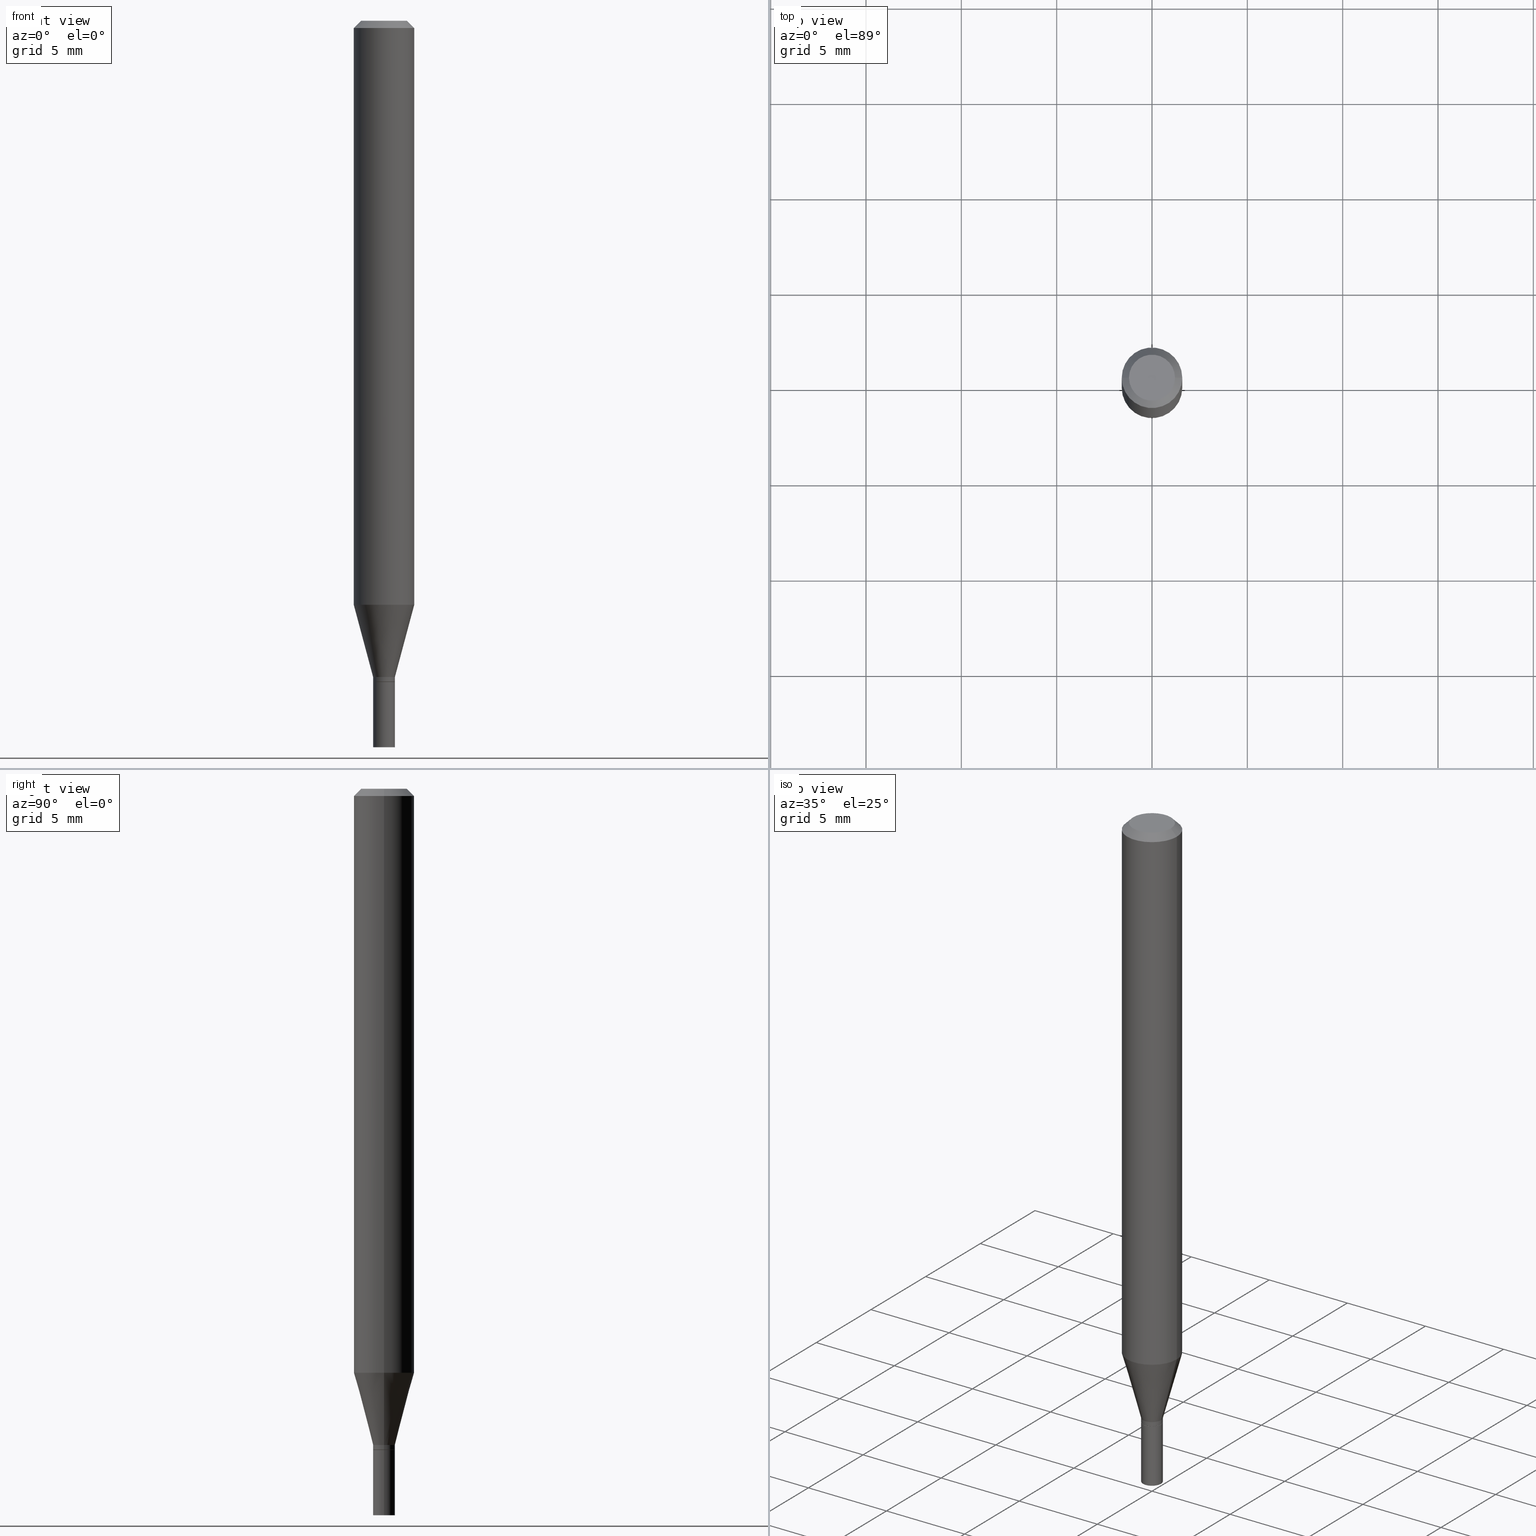
[diagram: canonical four-view strip — front | top / right | iso, engineering-drawing reading convention]
A machine part, canonical four-view strip (front | top / right | iso — engineering-drawing reading convention). The complete STEP part file that produces these views, byte-faithful:
ISO-10303-21;
HEADER;
FILE_DESCRIPTION (( 'STEP AP203' ),
    '1' );
FILE_NAME ('02440.STEP',
    '2024-03-18T20:36:44',
    ( '' ),
    ( '' ),
    'SwSTEP 2.0',
    'SolidWorks 2023',
    '' );
FILE_SCHEMA (( 'CONFIG_CONTROL_DESIGN' ));
ENDSEC;

DATA;
#1 = DIRECTION ( 'NONE',  ( -2.445468806185136597E-29, 3.491481338843145583E-15, 1.000000000000000000 ) ) ;
#2 = ORIENTED_EDGE ( 'NONE', *, *, #320, .T. ) ;
#3 = DATE_AND_TIME ( #216, #402 ) ;
#4 = CARTESIAN_POINT ( 'NONE',  ( 3.313610232380860851E-29, -4.730957214132463209E-15, -1.355000000000000204 ) ) ;
#5 = EDGE_LOOP ( 'NONE', ( #10, #349, #232, #228 ) ) ;
#6 = AXIS2_PLACEMENT_3D ( 'NONE', #9, #79, #304 ) ;
#7 = DIRECTION ( 'NONE',  ( -2.445468806185136597E-29, 3.491481338843145583E-15, 1.000000000000000000 ) ) ;
#8 = ORIENTED_EDGE ( 'NONE', *, *, #204, .T. ) ;
#9 = CARTESIAN_POINT ( 'NONE',  ( 0.000000000000000000, 0.000000000000000000, 0.000000000000000000 ) ) ;
#10 = ORIENTED_EDGE ( 'NONE', *, *, #390, .F. ) ;
#11 = PRODUCT ( '02440', '02440', '', ( #423 ) ) ;
#12 = CARTESIAN_POINT ( 'NONE',  ( 1.571166602479743698E-16, 0.02249999999999523215, -1.364999999999999991 ) ) ;
#13 = ORIENTED_EDGE ( 'NONE', *, *, #282, .T. ) ;
#14 = CIRCLE ( 'NONE', #392, 0.02199999999999999872 ) ;
#15 = CIRCLE ( 'NONE', #281, 0.02249999999999992284 ) ;
#16 = DIRECTION ( 'NONE',  ( -2.445468806185136877E-29, 3.491481338843145188E-15, 1.000000000000000000 ) ) ;
#17 = DIRECTION ( 'NONE',  ( 1.000000000000000000, -6.982962677686267499E-15, 4.852736867747366768E-29 ) ) ;
#18 = DIRECTION ( 'NONE',  ( 1.000000000000000000, -6.982962677686266711E-15, 4.876176775795935793E-29 ) ) ;
#19 = EDGE_LOOP ( 'NONE', ( #40, #239, #194, #262 ) ) ;
#20 = DIRECTION ( 'NONE',  ( 1.000000000000000000, -6.982962677686266711E-15, 0.000000000000000000 ) ) ;
#21 = DIRECTION ( 'NONE',  ( 1.000000000000000000, -6.982962677686269077E-15, 0.000000000000000000 ) ) ;
#22 = CIRCLE ( 'NONE', #440, 0.04749999999999999362 ) ;
#23 = LOCAL_TIME ( 16, 36, 44.00000000000000000, #94 ) ;
#24 = EDGE_LOOP ( 'NONE', ( #439, #13, #325, #290 ) ) ;
#25 = COORDINATED_UNIVERSAL_TIME_OFFSET ( 5, 0, .BEHIND. ) ;
#26 = ORIENTED_EDGE ( 'NONE', *, *, #238, .F. ) ;
#27 = EDGE_CURVE ( 'NONE', #167, #97, #22, .T. ) ;
#28 = CALENDAR_DATE ( 2024, 18, 3 ) ;
#29 = LINE ( 'NONE', #139, #219 ) ;
#30 = EDGE_CURVE ( 'NONE', #370, #259, #122, .T. ) ;
#31 = DIRECTION ( 'NONE',  ( 1.000000000000000000, 0.000000000000000000, 0.000000000000000000 ) ) ;
#32 = PERSON_AND_ORGANIZATION_ROLE ( 'creator' ) ;
#33 = DIRECTION ( 'NONE',  ( 1.000000000000000000, -6.982962677686248567E-15, 0.000000000000000000 ) ) ;
#34 = AXIS2_PLACEMENT_3D ( 'NONE', #4, #429, #397 ) ;
#35 = DATE_TIME_ROLE ( 'classification_date' ) ;
#36 = FACE_OUTER_BOUND ( 'NONE', #302, .T. ) ;
#37 = EDGE_CURVE ( 'NONE', #74, #257, #450, .T. ) ;
#38 = CARTESIAN_POINT ( 'NONE',  ( 0.000000000000000000, 0.000000000000000000, 0.000000000000000000 ) ) ;
#39 = EDGE_CURVE ( 'NONE', #203, #323, #137, .T. ) ;
#40 = ORIENTED_EDGE ( 'NONE', *, *, #30, .T. ) ;
#41 = PERSON_AND_ORGANIZATION ( #69, #50 ) ;
#42 = DIRECTION ( 'NONE',  ( 1.000000000000000000, -6.982962677686265922E-15, 4.876176775795935793E-29 ) ) ;
#43 = PRODUCT_DEFINITION_FORMATION_WITH_SPECIFIED_SOURCE ( 'ANY', '', #11, .NOT_KNOWN. ) ;
#44 = CARTESIAN_POINT ( 'NONE',  ( -0.02249999999999999917, -4.841674902346784228E-15, -1.500000000000000222 ) ) ;
#45 = DIRECTION ( 'NONE',  ( -2.445468806185136597E-29, 3.491481338843145583E-15, 1.000000000000000000 ) ) ;
#46 = UNCERTAINTY_MEASURE_WITH_UNIT (LENGTH_MEASURE( 1.000000000000000082E-05 ), #240, 'distance_accuracy_value', 'NONE');
#47 = ORIENTED_EDGE ( 'NONE', *, *, #133, .T. ) ;
#48 = LINE ( 'NONE', #443, #138 ) ;
#49 = EDGE_LOOP ( 'NONE', ( #398, #115, #420, #444 ) ) ;
#50 = ORGANIZATION ( 'UNSPECIFIED', 'UNSPECIFIED', '' ) ;
#51 = DIRECTION ( 'NONE',  ( 2.438088387897960049E-29, -3.491481338843145188E-15, -1.000000000000000000 ) ) ;
#52 = DIRECTION ( 'NONE',  ( -2.445468806185136597E-29, 3.491481338843145583E-15, 1.000000000000000000 ) ) ;
#53 = DIRECTION ( 'NONE',  ( 0.7071067811865420216, -7.319954787623237113E-15, -0.7071067811865530128 ) ) ;
#54 = PLANE ( 'NONE',  #336 ) ;
#55 = DIRECTION ( 'NONE',  ( -2.445468806185136597E-29, 3.491481338843145583E-15, 1.000000000000000000 ) ) ;
#56 = FACE_OUTER_BOUND ( 'NONE', #305, .T. ) ;
#57 = MANIFOLD_SOLID_BREP ( 'Body-Move/Copy2[1]', #106 ) ;
#58 = AXIS2_PLACEMENT_3D ( 'NONE', #369, #224, #309 ) ;
#59 = EDGE_LOOP ( 'NONE', ( #455, #47, #2, #121 ) ) ;
#60 = PERSON_AND_ORGANIZATION ( #69, #50 ) ;
#61 = DIRECTION ( 'NONE',  ( 2.445468806185136597E-29, -3.491481338843145583E-15, -1.000000000000000000 ) ) ;
#62 = EDGE_CURVE ( 'NONE', #323, #203, #248, .T. ) ;
#63 = PLANE ( 'NONE',  #421 ) ;
#64 = DIRECTION ( 'NONE',  ( -1.000000000000000000, 6.982962677686266711E-15, 0.000000000000000000 ) ) ;
#65 = CALENDAR_DATE ( 2024, 18, 3 ) ;
#66 = AXIS2_PLACEMENT_3D ( 'NONE', #38, #182, #42 ) ;
#67 = CC_DESIGN_SECURITY_CLASSIFICATION ( #347, ( #43 ) ) ;
#68 = APPROVAL_STATUS ( 'not_yet_approved' ) ;
#69 = PERSON ( 'UNSPECIFIED', 'UNSPECIFIED', 'UNSPECIFIED', ('UNSPECIFIED'), ('UNSPECIFIED'), ('UNSPECIFIED') ) ;
#70 = DIRECTION ( 'NONE',  ( -0.7071067811865420216, 2.468850131082199474E-15, -0.7071067811865530128 ) ) ;
#71 = VECTOR ( 'NONE', #445, 39.37007874015748143 ) ;
#72 = FACE_OUTER_BOUND ( 'NONE', #113, .T. ) ;
#73 = DESIGN_CONTEXT ( 'detailed design', #303, 'design' ) ;
#74 = VERTEX_POINT ( 'NONE', #236 ) ;
#75 = ADVANCED_FACE ( 'NONE', ( #457 ), #313, .T. ) ;
#76 = APPROVAL_ROLE ( '' ) ;
#77 = DIRECTION ( 'NONE',  ( 1.000000000000000000, -6.982962677686267499E-15, 4.852736867747366768E-29 ) ) ;
#78 = ORIENTED_EDGE ( 'NONE', *, *, #267, .T. ) ;
#79 = DIRECTION ( 'NONE',  ( -2.445468806185136597E-29, 3.491481338843145583E-15, 1.000000000000000000 ) ) ;
#80 = AXIS2_PLACEMENT_3D ( 'NONE', #288, #321, #143 ) ;
#81 = VECTOR ( 'NONE', #53, 39.37007874015748143 ) ;
#82 = LINE ( 'NONE', #401, #81 ) ;
#83 = PRODUCT_DEFINITION_SHAPE ( 'NONE', 'NONE',  #278 ) ;
#84 = ADVANCED_FACE ( 'NONE', ( #100 ), #54, .F. ) ;
#85 = ORIENTED_EDGE ( 'NONE', *, *, #413, .T. ) ;
#86 = CARTESIAN_POINT ( 'NONE',  ( -0.02249999999999999917, 1.598721155460225359E-16, -1.106760395307353780E-30 ) ) ;
#87 = ORIENTED_EDGE ( 'NONE', *, *, #210, .T. ) ;
#88 = APPROVAL ( #68, 'UNSPECIFIED' ) ;
#89 = FACE_OUTER_BOUND ( 'NONE', #328, .T. ) ;
#90 = CARTESIAN_POINT ( 'NONE',  ( 2.948545679060551070E-29, -4.209741784122813615E-15, -1.205717967697245152 ) ) ;
#91 = CIRCLE ( 'NONE', #352, 0.02249999999999991937 ) ;
#92 = CARTESIAN_POINT ( 'NONE',  ( 3.668203209277705088E-31, -5.237222008264718399E-17, -0.01499999999999999944 ) ) ;
#93 = VERTEX_POINT ( 'NONE', #384 ) ;
#94 = COORDINATED_UNIVERSAL_TIME_OFFSET ( 5, 0, .BEHIND. ) ;
#95 = CARTESIAN_POINT ( 'NONE',  ( 3.668203209277704895E-29, -5.237222008264718177E-15, -1.500000000000000222 ) ) ;
#96 = LINE ( 'NONE', #212, #146 ) ;
#97 = VERTEX_POINT ( 'NONE', #378 ) ;
#98 =( NAMED_UNIT ( * ) PLANE_ANGLE_UNIT ( ) SI_UNIT ( $, .RADIAN. ) );
#99 = VECTOR ( 'NONE', #127, 39.37007874015747433 ) ;
#100 = FACE_OUTER_BOUND ( 'NONE', #244, .T. ) ;
#101 = DIMENSIONAL_EXPONENTS ( 1.000000000000000000, 0.000000000000000000, 0.000000000000000000, 0.000000000000000000, 0.000000000000000000, 0.000000000000000000, 0.000000000000000000 ) ;
#102 = PERSON_AND_ORGANIZATION ( #69, #50 ) ;
#103 = CARTESIAN_POINT ( 'NONE',  ( 3.338064920442711836E-29, -4.765872027520893280E-15, -1.364999999999999991 ) ) ;
#104 = LENGTH_MEASURE_WITH_UNIT ( LENGTH_MEASURE( 0.02539999999999999897 ), #344 );
#105 = ADVANCED_FACE ( 'NONE', ( #56 ), #380, .T. ) ;
#106 = CLOSED_SHELL ( 'NONE', ( #379, #84, #75, #332 ) ) ;
#107 = APPROVAL_PERSON_ORGANIZATION ( #319, #306, #412 ) ;
#108 = DIRECTION ( 'NONE',  ( -2.445468806185136597E-29, 3.491481338843145583E-15, 1.000000000000000000 ) ) ;
#109 = ADVANCED_FACE ( 'NONE', ( #72 ), #286, .T. ) ;
#110 = PERSON_AND_ORGANIZATION ( #69, #50 ) ;
#111 = DIRECTION ( 'NONE',  ( -2.445468806185136597E-29, 3.491481338843145583E-15, 1.000000000000000000 ) ) ;
#112 = VECTOR ( 'NONE', #16, 39.37007874015748143 ) ;
#113 = EDGE_LOOP ( 'NONE', ( #162, #358, #403, #437 ) ) ;
#114 = CARTESIAN_POINT ( 'NONE',  ( -5.723698685194923234E-45, 8.171924785126947293E-31, 2.340532281875119882E-16 ) ) ;
#115 = ORIENTED_EDGE ( 'NONE', *, *, #37, .T. ) ;
#116 = FACE_OUTER_BOUND ( 'NONE', #19, .T. ) ;
#117 = ORIENTED_EDGE ( 'NONE', *, *, #390, .T. ) ;
#118 = ADVANCED_FACE ( 'NONE', ( #116 ), #184, .T. ) ;
#119 = DIRECTION ( 'NONE',  ( 1.000000000000000000, -6.982962677686266711E-15, 0.000000000000000000 ) ) ;
#120 = ADVANCED_FACE ( 'NONE', ( #221 ), #419, .T. ) ;
#121 = ORIENTED_EDGE ( 'NONE', *, *, #169, .F. ) ;
#122 = CIRCLE ( 'NONE', #186, 0.06250000000000000000 ) ;
#123 = CARTESIAN_POINT ( 'NONE',  ( -0.02249999999999992284, 1.598721155460219936E-16, -1.106760395307350101E-30 ) ) ;
#124 = ORIENTED_EDGE ( 'NONE', *, *, #62, .F. ) ;
#125 = CARTESIAN_POINT ( 'NONE',  ( 0.02249999999999991937, -4.888073874380403263E-15, -1.355000000000000204 ) ) ;
#126 = DIRECTION ( 'NONE',  ( -2.445468806185136597E-29, 3.491481338843145583E-15, 1.000000000000000000 ) ) ;
#127 = DIRECTION ( 'NONE',  ( 0.2588190451025213501, 1.565188264969621968E-15, 0.9659258262890682012 ) ) ;
#128 = CARTESIAN_POINT ( 'NONE',  ( 3.668203209277704895E-29, -5.237222008264718177E-15, -1.500000000000000222 ) ) ;
#129 = DIRECTION ( 'NONE',  ( 1.000000000000000000, -6.982962677686249356E-15, 0.000000000000000000 ) ) ;
#130 = CC_DESIGN_PERSON_AND_ORGANIZATION_ASSIGNMENT ( #60, #350, ( #278 ) ) ;
#131 = VERTEX_POINT ( 'NONE', #252 ) ;
#132 = CARTESIAN_POINT ( 'NONE',  ( 0.000000000000000000, 0.000000000000000000, 0.000000000000000000 ) ) ;
#133 = EDGE_CURVE ( 'NONE', #361, #199, #156, .T. ) ;
#134 = DIRECTION ( 'NONE',  ( 1.000000000000000000, -6.982962677686245411E-15, 0.000000000000000000 ) ) ;
#135 = EDGE_LOOP ( 'NONE', ( #189, #78 ) ) ;
#136 = CARTESIAN_POINT ( 'NONE',  ( 0.000000000000000000, 0.000000000000000000, 0.000000000000000000 ) ) ;
#137 = CIRCLE ( 'NONE', #177, 0.02249999999999999917 ) ;
#138 = VECTOR ( 'NONE', #152, 39.37007874015747433 ) ;
#139 = CARTESIAN_POINT ( 'NONE',  ( -0.02199999999999999872, -4.609552625653671101E-15, -1.364999999999999991 ) ) ;
#140 = CARTESIAN_POINT ( 'NONE',  ( 3.338064920442711836E-29, -4.765872027520893280E-15, -1.364999999999999991 ) ) ;
#141 = AXIS2_PLACEMENT_3D ( 'NONE', #223, #295, #33 ) ;
#142 = CARTESIAN_POINT ( 'NONE',  ( 0.02249999999999999917, -1.571166602479409911E-16, 1.097139774554085483E-30 ) ) ;
#143 = DIRECTION ( 'NONE',  ( 1.000000000000000000, -6.982962677686266711E-15, 4.876176775795935793E-29 ) ) ;
#144 = ORIENTED_EDGE ( 'NONE', *, *, #27, .F. ) ;
#145 = CARTESIAN_POINT ( 'NONE',  ( 3.313610232380860851E-29, -4.730957214132463209E-15, -1.355000000000000204 ) ) ;
#146 = VECTOR ( 'NONE', #312, 39.37007874015748143 ) ;
#147 = ORIENTED_EDGE ( 'NONE', *, *, #428, .T. ) ;
#148 = EDGE_CURVE ( 'NONE', #199, #361, #14, .T. ) ;
#149 = DIRECTION ( 'NONE',  ( -2.445468806185136597E-29, 3.491481338843145583E-15, 1.000000000000000000 ) ) ;
#150 = EDGE_CURVE ( 'NONE', #259, #370, #459, .T. ) ;
#151 = VERTEX_POINT ( 'NONE', #260 ) ;
#152 = DIRECTION ( 'NONE',  ( -0.2588190451025213501, 5.211531920934551042E-15, 0.9659258262890682012 ) ) ;
#153 = ORIENTED_EDGE ( 'NONE', *, *, #148, .F. ) ;
#154 = FACE_OUTER_BOUND ( 'NONE', #346, .T. ) ;
#155 = ORIENTED_EDGE ( 'NONE', *, *, #168, .F. ) ;
#156 = CIRCLE ( 'NONE', #217, 0.02199999999999999872 ) ;
#157 = AXIS2_PLACEMENT_3D ( 'NONE', #92, #198, #119 ) ;
#158 = EDGE_CURVE ( 'NONE', #203, #226, #434, .T. ) ;
#159 = CARTESIAN_POINT ( 'NONE',  ( -0.02199999999999999872, -4.606903398479560689E-15, -1.364999999999999991 ) ) ;
#160 = CARTESIAN_POINT ( 'NONE',  ( 0.000000000000000000, 0.000000000000000000, 0.000000000000000000 ) ) ;
#161 = CARTESIAN_POINT ( 'NONE',  ( 3.336842186039619034E-29, -4.764126286851473355E-15, -1.364500000000000046 ) ) ;
#162 = ORIENTED_EDGE ( 'NONE', *, *, #330, .T. ) ;
#163 = CARTESIAN_POINT ( 'NONE',  ( 3.338064920442711836E-29, -4.765872027520893280E-15, -1.364999999999999991 ) ) ;
#164 = DIRECTION ( 'NONE',  ( -2.445468806185136597E-29, 3.491481338843145583E-15, 1.000000000000000000 ) ) ;
#165 = AXIS2_PLACEMENT_3D ( 'NONE', #114, #108, #77 ) ;
#166 = APPROVAL_STATUS ( 'not_yet_approved' ) ;
#167 = VERTEX_POINT ( 'NONE', #395 ) ;
#168 = EDGE_CURVE ( 'NONE', #97, #167, #372, .T. ) ;
#169 = EDGE_CURVE ( 'NONE', #131, #151, #355, .T. ) ;
#170 = DIRECTION ( 'NONE',  ( -2.438088387897960049E-29, 3.491481338843145188E-15, 1.000000000000000000 ) ) ;
#171 = CARTESIAN_POINT ( 'NONE',  ( 3.313610232380860851E-29, -4.730957214132463209E-15, -1.355000000000000204 ) ) ;
#172 = DIRECTION ( 'NONE',  ( -2.445468806185136877E-29, 3.491481338843145188E-15, 1.000000000000000000 ) ) ;
#173 = DATE_AND_TIME ( #28, #274 ) ;
#174 = CONICAL_SURFACE ( 'NONE', #451, 0.02199999999999999872, 0.7853981633974739252 ) ;
#175 = APPROVAL_DATE_TIME ( #383, #464 ) ;
#176 = CC_DESIGN_DATE_AND_TIME_ASSIGNMENT ( #3, #35, ( #347 ) ) ;
#177 = AXIS2_PLACEMENT_3D ( 'NONE', #128, #273, #314 ) ;
#178 = CARTESIAN_POINT ( 'NONE',  ( 3.338064920442711836E-29, -4.765872027520893280E-15, -1.364999999999999991 ) ) ;
#179 = AXIS2_PLACEMENT_3D ( 'NONE', #461, #1, #283 ) ;
#180 = CYLINDRICAL_SURFACE ( 'NONE', #373, 0.06250000000000000000 ) ;
#181 = COORDINATED_UNIVERSAL_TIME_OFFSET ( 5, 0, .BEHIND. ) ;
#182 = DIRECTION ( 'NONE',  ( -2.445468806185136597E-29, 3.491481338843145583E-15, 1.000000000000000000 ) ) ;
#183 = SECURITY_CLASSIFICATION_LEVEL ( 'unclassified' ) ;
#184 = CYLINDRICAL_SURFACE ( 'NONE', #80, 0.06250000000000000000 ) ;
#185 = ADVANCED_FACE ( 'NONE', ( #360 ), #246, .T. ) ;
#186 = AXIS2_PLACEMENT_3D ( 'NONE', #90, #52, #279 ) ;
#187 = VECTOR ( 'NONE', #193, 39.37007874015748143 ) ;
#188 = ADVANCED_FACE ( 'NONE', ( #326 ), #426, .T. ) ;
#189 = ORIENTED_EDGE ( 'NONE', *, *, #209, .T. ) ;
#190 = DIRECTION ( 'NONE',  ( -2.445468806185136597E-29, 3.491481338843145583E-15, 1.000000000000000000 ) ) ;
#191 = VERTEX_POINT ( 'NONE', #211 ) ;
#192 = CC_DESIGN_PERSON_AND_ORGANIZATION_ASSIGNMENT ( #41, #433, ( #43 ) ) ;
#193 = DIRECTION ( 'NONE',  ( -2.445468806185136877E-29, 3.491481338843145188E-15, 1.000000000000000000 ) ) ;
#194 = ORIENTED_EDGE ( 'NONE', *, *, #293, .F. ) ;
#195 = DIRECTION ( 'NONE',  ( -2.445468806185136877E-29, 3.491481338843145188E-15, 1.000000000000000000 ) ) ;
#196 = ORIENTED_EDGE ( 'NONE', *, *, #416, .T. ) ;
#197 = VECTOR ( 'NONE', #371, 39.37007874015748143 ) ;
#198 = DIRECTION ( 'NONE',  ( -2.445468806185136597E-29, 3.491481338843145583E-15, 1.000000000000000000 ) ) ;
#199 = VERTEX_POINT ( 'NONE', #208 ) ;
#200 = CARTESIAN_POINT ( 'NONE',  ( -0.06250000000000001388, -3.765652574272750998E-15, -1.205717967697245152 ) ) ;
#201 = ORIENTED_EDGE ( 'NONE', *, *, #416, .F. ) ;
#202 = DIRECTION ( 'NONE',  ( 1.000000000000000000, -6.982962677686265922E-15, 4.876176775795935793E-29 ) ) ;
#203 = VERTEX_POINT ( 'NONE', #351 ) ;
#204 = EDGE_CURVE ( 'NONE', #361, #131, #29, .T. ) ;
#205 = CIRCLE ( 'NONE', #213, 0.06250000000000000000 ) ;
#206 = DIRECTION ( 'NONE',  ( -2.445468806185136597E-29, 3.491481338843145583E-15, 1.000000000000000000 ) ) ;
#207 = APPLICATION_CONTEXT ( 'configuration controlled 3d designs of mechanical parts and assemblies' ) ;
#208 = CARTESIAN_POINT ( 'NONE',  ( 0.02199999999999999872, -4.919497206429991117E-15, -1.364999999999999991 ) ) ;
#209 = EDGE_CURVE ( 'NONE', #226, #93, #243, .T. ) ;
#210 = EDGE_CURVE ( 'NONE', #167, #191, #424, .T. ) ;
#211 = CARTESIAN_POINT ( 'NONE',  ( -0.06250000000000000000, -1.686967792252667731E-15, -0.01499999999999999944 ) ) ;
#212 = CARTESIAN_POINT ( 'NONE',  ( -0.06250000000000000000, 4.440892098500626162E-16, -3.074334431409316114E-30 ) ) ;
#213 = AXIS2_PLACEMENT_3D ( 'NONE', #449, #307, #20 ) ;
#214 = PERSON_AND_ORGANIZATION_ROLE ( 'classification_officer' ) ;
#215 = ADVANCED_FACE ( 'NONE', ( #289 ), #233, .T. ) ;
#216 = CALENDAR_DATE ( 2024, 18, 3 ) ;
#217 = AXIS2_PLACEMENT_3D ( 'NONE', #178, #149, #324 ) ;
#218 = CARTESIAN_POINT ( 'NONE',  ( 3.668203209277705088E-31, -5.237222008264718399E-17, -0.01499999999999999944 ) ) ;
#219 = VECTOR ( 'NONE', #316, 39.37007874015748143 ) ;
#220 = COORDINATED_UNIVERSAL_TIME_OFFSET ( 5, 0, .BEHIND. ) ;
#221 = FACE_OUTER_BOUND ( 'NONE', #49, .T. ) ;
#222 = ORIENTED_EDGE ( 'NONE', *, *, #37, .F. ) ;
#223 = CARTESIAN_POINT ( 'NONE',  ( 3.336842186039619034E-29, -4.764126286851473355E-15, -1.364500000000000046 ) ) ;
#224 = DIRECTION ( 'NONE',  ( -2.445468806185136597E-29, 3.491481338843145583E-15, 1.000000000000000000 ) ) ;
#225 = APPROVAL_PERSON_ORGANIZATION ( #315, #464, #318 ) ;
#226 = VERTEX_POINT ( 'NONE', #356 ) ;
#227 = LINE ( 'NONE', #404, #71 ) ;
#228 = ORIENTED_EDGE ( 'NONE', *, *, #267, .F. ) ;
#229 = DIRECTION ( 'NONE',  ( 1.000000000000000000, -6.982962677686245411E-15, 0.000000000000000000 ) ) ;
#230 = EDGE_LOOP ( 'NONE', ( #367, #144, #87, #196 ) ) ;
#231 = PLANE ( 'NONE',  #250 ) ;
#232 = ORIENTED_EDGE ( 'NONE', *, *, #158, .T. ) ;
#233 = CONICAL_SURFACE ( 'NONE', #363, 0.06250000000000000000, 0.7853981633974405074 ) ;
#234 = DIRECTION ( 'NONE',  ( 2.438088387897960049E-29, -3.491481338843145188E-15, -1.000000000000000000 ) ) ;
#235 = ADVANCED_FACE ( 'NONE', ( #36 ), #180, .T. ) ;
#236 = CARTESIAN_POINT ( 'NONE',  ( -0.02249999999999991937, -4.168368836429595565E-15, -1.355000000000000204 ) ) ;
#237 = CALENDAR_DATE ( 2024, 18, 3 ) ;
#238 = EDGE_CURVE ( 'NONE', #151, #131, #15, .T. ) ;
#239 = ORIENTED_EDGE ( 'NONE', *, *, #453, .T. ) ;
#240 =( CONVERSION_BASED_UNIT ( 'INCH', #104 ) LENGTH_UNIT ( ) NAMED_UNIT ( #101 ) );
#241 = EDGE_LOOP ( 'NONE', ( #155, #147, #431, #296 ) ) ;
#242 = AXIS2_PLACEMENT_3D ( 'NONE', #132, #376, #280 ) ;
#243 = CIRCLE ( 'NONE', #179, 0.02249999999999999917 ) ;
#244 = EDGE_LOOP ( 'NONE', ( #334, #124 ) ) ;
#245 = DATE_TIME_ROLE ( 'creation_date' ) ;
#246 = CYLINDRICAL_SURFACE ( 'NONE', #66, 0.02249999999999992284 ) ;
#247 = APPLICATION_PROTOCOL_DEFINITION ( 'international standard', 'config_control_design', 1994, #207 ) ;
#248 = CIRCLE ( 'NONE', #362, 0.02249999999999999917 ) ;
#249 = APPROVAL_DATE_TIME ( #427, #88 ) ;
#250 = AXIS2_PLACEMENT_3D ( 'NONE', #12, #51, #272 ) ;
#251 = CC_DESIGN_APPROVAL ( #88, ( #347 ) ) ;
#252 = CARTESIAN_POINT ( 'NONE',  ( -0.02249999999999992284, -4.604254171305449488E-15, -1.364500000000000046 ) ) ;
#253 = PRODUCT_RELATED_PRODUCT_CATEGORY ( 'detail', '', ( #11 ) ) ;
#254 = AXIS2_PLACEMENT_3D ( 'NONE', #466, #111, #258 ) ;
#255 = DIRECTION ( 'NONE',  ( -1.000000000000000000, 6.982962677686266711E-15, 0.000000000000000000 ) ) ;
#256 =( GEOMETRIC_REPRESENTATION_CONTEXT ( 3 ) GLOBAL_UNCERTAINTY_ASSIGNED_CONTEXT ( ( #46 ) ) GLOBAL_UNIT_ASSIGNED_CONTEXT ( ( #240, #98, #456 ) ) REPRESENTATION_CONTEXT ( 'NONE', 'WORKASPACE' ) );
#257 = VERTEX_POINT ( 'NONE', #341 ) ;
#258 = DIRECTION ( 'NONE',  ( 1.000000000000000000, -6.982962677686270655E-15, 0.000000000000000000 ) ) ;
#259 = VERTEX_POINT ( 'NONE', #200 ) ;
#260 = CARTESIAN_POINT ( 'NONE',  ( 0.02249999999999992284, -4.921242947099412620E-15, -1.364500000000000046 ) ) ;
#261 = CC_DESIGN_DATE_AND_TIME_ASSIGNMENT ( #173, #245, ( #278 ) ) ;
#262 = ORIENTED_EDGE ( 'NONE', *, *, #298, .F. ) ;
#263 = PLANE ( 'NONE',  #264 ) ;
#264 = AXIS2_PLACEMENT_3D ( 'NONE', #447, #234, #375 ) ;
#265 = ORIENTED_EDGE ( 'NONE', *, *, #27, .T. ) ;
#266 = LINE ( 'NONE', #123, #187 ) ;
#267 = EDGE_CURVE ( 'NONE', #93, #226, #301, .T. ) ;
#268 = ADVANCED_FACE ( 'NONE', ( #89 ), #442, .T. ) ;
#269 = ORIENTED_EDGE ( 'NONE', *, *, #169, .T. ) ;
#270 = LINE ( 'NONE', #364, #197 ) ;
#271 = DIRECTION ( 'NONE',  ( 1.000000000000000000, -6.982962677686265922E-15, 4.876176775795935793E-29 ) ) ;
#272 = DIRECTION ( 'NONE',  ( -1.000000000000000000, 6.982962677686265922E-15, -4.876176775795935793E-29 ) ) ;
#273 = DIRECTION ( 'NONE',  ( -2.445468806185136597E-29, 3.491481338843145583E-15, 1.000000000000000000 ) ) ;
#274 = LOCAL_TIME ( 16, 36, 44.00000000000000000, #277 ) ;
#275 = APPROVAL_STATUS ( 'not_yet_approved' ) ;
#276 = DIRECTION ( 'NONE',  ( 1.000000000000000000, -6.982962677686265922E-15, 4.876176775795935793E-29 ) ) ;
#277 = COORDINATED_UNIVERSAL_TIME_OFFSET ( 5, 0, .BEHIND. ) ;
#278 = PRODUCT_DEFINITION ( 'UNKNOWN', '', #43, #73 ) ;
#279 = DIRECTION ( 'NONE',  ( 1.000000000000000000, -6.982962677686270655E-15, 0.000000000000000000 ) ) ;
#280 = DIRECTION ( 'NONE',  ( 1.000000000000000000, -6.982962677686266711E-15, 4.876176775795935793E-29 ) ) ;
#281 = AXIS2_PLACEMENT_3D ( 'NONE', #161, #406, #365 ) ;
#282 = EDGE_CURVE ( 'NONE', #131, #74, #266, .T. ) ;
#283 = DIRECTION ( 'NONE',  ( 1.000000000000000000, -6.982962677686269077E-15, 0.000000000000000000 ) ) ;
#284 = FACE_OUTER_BOUND ( 'NONE', #59, .T. ) ;
#285 = PERSON_AND_ORGANIZATION ( #69, #50 ) ;
#286 = CONICAL_SURFACE ( 'NONE', #34, 0.02249999999999991937, 0.2617993877991500740 ) ;
#287 = CC_DESIGN_APPROVAL ( #306, ( #43 ) ) ;
#288 = CARTESIAN_POINT ( 'NONE',  ( 0.000000000000000000, 0.000000000000000000, 0.000000000000000000 ) ) ;
#289 = FACE_OUTER_BOUND ( 'NONE', #241, .T. ) ;
#290 = ORIENTED_EDGE ( 'NONE', *, *, #413, .F. ) ;
#291 = VECTOR ( 'NONE', #195, 39.37007874015748143 ) ;
#292 = DIRECTION ( 'NONE',  ( -2.445468806185136597E-29, 3.491481338843145583E-15, 1.000000000000000000 ) ) ;
#293 = EDGE_CURVE ( 'NONE', #448, #191, #205, .T. ) ;
#294 = ORIENTED_EDGE ( 'NONE', *, *, #320, .F. ) ;
#295 = DIRECTION ( 'NONE',  ( -2.445468806185136597E-29, 3.491481338843145583E-15, 1.000000000000000000 ) ) ;
#296 = ORIENTED_EDGE ( 'NONE', *, *, #210, .F. ) ;
#297 = LINE ( 'NONE', #86, #291 ) ;
#298 = EDGE_CURVE ( 'NONE', #370, #448, #227, .T. ) ;
#299 = CYLINDRICAL_SURFACE ( 'NONE', #6, 0.02249999999999999917 ) ;
#300 = EDGE_CURVE ( 'NONE', #257, #370, #408, .T. ) ;
#301 = CIRCLE ( 'NONE', #58, 0.02249999999999999917 ) ;
#302 = EDGE_LOOP ( 'NONE', ( #435, #374, #405, #201 ) ) ;
#303 = APPLICATION_CONTEXT ( 'configuration controlled 3d designs of mechanical parts and assemblies' ) ;
#304 = DIRECTION ( 'NONE',  ( 1.000000000000000000, -6.982962677686266711E-15, 4.876176775795935793E-29 ) ) ;
#305 = EDGE_LOOP ( 'NONE', ( #446, #269, #85, #222 ) ) ;
#306 = APPROVAL ( #275, 'UNSPECIFIED' ) ;
#307 = DIRECTION ( 'NONE',  ( -2.445468806185136597E-29, 3.491481338843145583E-15, 1.000000000000000000 ) ) ;
#308 = EDGE_LOOP ( 'NONE', ( #153, #452 ) ) ;
#309 = DIRECTION ( 'NONE',  ( 1.000000000000000000, -6.982962677686269077E-15, 0.000000000000000000 ) ) ;
#310 = CARTESIAN_POINT ( 'NONE',  ( 3.576687321579069994E-29, -5.368277968210015545E-15, -1.500000000000000222 ) ) ;
#311 = AXIS2_PLACEMENT_3D ( 'NONE', #136, #385, #31 ) ;
#312 = DIRECTION ( 'NONE',  ( -2.445468806185136877E-29, 3.491481338843145188E-15, 1.000000000000000000 ) ) ;
#313 = CYLINDRICAL_SURFACE ( 'NONE', #242, 0.02249999999999999917 ) ;
#314 = DIRECTION ( 'NONE',  ( 1.000000000000000000, -6.982962677686269077E-15, 0.000000000000000000 ) ) ;
#315 = PERSON_AND_ORGANIZATION ( #69, #50 ) ;
#316 = DIRECTION ( 'NONE',  ( -0.7071067811865656694, 7.493145998870420424E-15, 0.7071067811865294761 ) ) ;
#317 = VECTOR ( 'NONE', #172, 39.37007874015748143 ) ;
#318 = APPROVAL_ROLE ( '' ) ;
#319 = PERSON_AND_ORGANIZATION ( #69, #50 ) ;
#320 = EDGE_CURVE ( 'NONE', #199, #151, #270, .T. ) ;
#321 = DIRECTION ( 'NONE',  ( -2.445468806185136597E-29, 3.491481338843145583E-15, 1.000000000000000000 ) ) ;
#322 = CARTESIAN_POINT ( 'NONE',  ( 0.000000000000000000, 0.000000000000000000, 0.000000000000000000 ) ) ;
#323 = VERTEX_POINT ( 'NONE', #44 ) ;
#324 = DIRECTION ( 'NONE',  ( 1.000000000000000000, -6.982962677686245411E-15, 0.000000000000000000 ) ) ;
#325 = ORIENTED_EDGE ( 'NONE', *, *, #330, .F. ) ;
#326 = FACE_OUTER_BOUND ( 'NONE', #230, .T. ) ;
#327 = LOCAL_TIME ( 16, 36, 44.00000000000000000, #181 ) ;
#328 = EDGE_LOOP ( 'NONE', ( #411, #8, #26, #294 ) ) ;
#329 = CARTESIAN_POINT ( 'NONE',  ( 0.06250000000000001388, -4.646176951478205284E-15, -1.205717967697245152 ) ) ;
#330 = EDGE_CURVE ( 'NONE', #257, #74, #91, .T. ) ;
#331 = ORIENTED_EDGE ( 'NONE', *, *, #168, .T. ) ;
#332 = ADVANCED_FACE ( 'NONE', ( #399 ), #231, .F. ) ;
#333 = CARTESIAN_POINT ( 'NONE',  ( 3.313610232380860851E-29, -4.730957214132463209E-15, -1.355000000000000204 ) ) ;
#334 = ORIENTED_EDGE ( 'NONE', *, *, #39, .F. ) ;
#335 = LINE ( 'NONE', #438, #112 ) ;
#336 = AXIS2_PLACEMENT_3D ( 'NONE', #310, #343, #276 ) ;
#337 = AXIS2_PLACEMENT_3D ( 'NONE', #163, #45, #229 ) ;
#338 = DIRECTION ( 'NONE',  ( -2.445468806185136597E-29, 3.491481338843145583E-15, 1.000000000000000000 ) ) ;
#339 = FACE_OUTER_BOUND ( 'NONE', #396, .T. ) ;
#340 = DIRECTION ( 'NONE',  ( 1.000000000000000000, -6.982962677686249356E-15, 0.000000000000000000 ) ) ;
#341 = CARTESIAN_POINT ( 'NONE',  ( 0.02249999999999991937, -4.888073874380403263E-15, -1.355000000000000204 ) ) ;
#342 = CC_DESIGN_PERSON_AND_ORGANIZATION_ASSIGNMENT ( #102, #348, ( #11 ) ) ;
#343 = DIRECTION ( 'NONE',  ( -2.438088387897960049E-29, 3.491481338843145188E-15, 1.000000000000000000 ) ) ;
#344 =( LENGTH_UNIT ( ) NAMED_UNIT ( * ) SI_UNIT ( $, .METRE. ) );
#345 = AXIS2_PLACEMENT_3D ( 'NONE', #145, #7, #353 ) ;
#346 = EDGE_LOOP ( 'NONE', ( #414, #117, #407, #400 ) ) ;
#347 = SECURITY_CLASSIFICATION ( '', '', #183 ) ;
#348 = PERSON_AND_ORGANIZATION_ROLE ( 'design_owner' ) ;
#349 = ORIENTED_EDGE ( 'NONE', *, *, #62, .T. ) ;
#350 = PERSON_AND_ORGANIZATION_ROLE ( 'creator' ) ;
#351 = CARTESIAN_POINT ( 'NONE',  ( 0.02249999999999999917, -5.394338668512659809E-15, -1.500000000000000222 ) ) ;
#352 = AXIS2_PLACEMENT_3D ( 'NONE', #333, #190, #129 ) ;
#353 = DIRECTION ( 'NONE',  ( 1.000000000000000000, -6.982962677686249356E-15, 0.000000000000000000 ) ) ;
#354 = ADVANCED_BREP_SHAPE_REPRESENTATION ( '02440', ( #57, #366, #311 ), #256 ) ;
#355 = CIRCLE ( 'NONE', #141, 0.02249999999999992284 ) ;
#356 = CARTESIAN_POINT ( 'NONE',  ( 0.02249999999999999917, -4.922988687768834913E-15, -1.364999999999999991 ) ) ;
#357 = DIRECTION ( 'NONE',  ( 1.000000000000000000, -6.982962677686245411E-15, 0.000000000000000000 ) ) ;
#358 = ORIENTED_EDGE ( 'NONE', *, *, #382, .T. ) ;
#359 = CALENDAR_DATE ( 2024, 18, 3 ) ;
#360 = FACE_OUTER_BOUND ( 'NONE', #24, .T. ) ;
#361 = VERTEX_POINT ( 'NONE', #159 ) ;
#362 = AXIS2_PLACEMENT_3D ( 'NONE', #95, #338, #21 ) ;
#363 = AXIS2_PLACEMENT_3D ( 'NONE', #218, #386, #64 ) ;
#364 = CARTESIAN_POINT ( 'NONE',  ( 0.02199999999999999872, -4.919497206429991117E-15, -1.364999999999999991 ) ) ;
#365 = DIRECTION ( 'NONE',  ( 1.000000000000000000, -6.982962677686248567E-15, 0.000000000000000000 ) ) ;
#366 = MANIFOLD_SOLID_BREP ( 'Body-Move/Copy2[2]', #388 ) ;
#367 = ORIENTED_EDGE ( 'NONE', *, *, #428, .F. ) ;
#368 = CC_DESIGN_PERSON_AND_ORGANIZATION_ASSIGNMENT ( #415, #32, ( #43 ) ) ;
#369 = CARTESIAN_POINT ( 'NONE',  ( 3.338064920442711836E-29, -4.765872027520893280E-15, -1.364999999999999991 ) ) ;
#370 = VERTEX_POINT ( 'NONE', #329 ) ;
#371 = DIRECTION ( 'NONE',  ( 0.7071067811865656694, -2.468850131082446387E-15, 0.7071067811865294761 ) ) ;
#372 = CIRCLE ( 'NONE', #165, 0.04749999999999999362 ) ;
#373 = AXIS2_PLACEMENT_3D ( 'NONE', #322, #430, #18 ) ;
#374 = ORIENTED_EDGE ( 'NONE', *, *, #150, .T. ) ;
#375 = DIRECTION ( 'NONE',  ( -1.000000000000000000, 6.982962677686265922E-15, -4.876176775795935793E-29 ) ) ;
#376 = DIRECTION ( 'NONE',  ( -2.445468806185136597E-29, 3.491481338843145583E-15, 1.000000000000000000 ) ) ;
#377 = DATE_AND_TIME ( #237, #23 ) ;
#378 = CARTESIAN_POINT ( 'NONE',  ( 0.04749999999999999362, -4.035134999187574186E-16, 2.340532281875146013E-16 ) ) ;
#379 = ADVANCED_FACE ( 'NONE', ( #154 ), #299, .T. ) ;
#380 = CYLINDRICAL_SURFACE ( 'NONE', #393, 0.02249999999999992284 ) ;
#381 = CIRCLE ( 'NONE', #157, 0.06250000000000000000 ) ;
#382 = EDGE_CURVE ( 'NONE', #74, #259, #48, .T. ) ;
#383 = DATE_AND_TIME ( #65, #432 ) ;
#384 = CARTESIAN_POINT ( 'NONE',  ( -0.02249999999999999917, -4.841674902346784228E-15, -1.364999999999999991 ) ) ;
#385 = DIRECTION ( 'NONE',  ( 0.000000000000000000, 0.000000000000000000, 1.000000000000000000 ) ) ;
#386 = DIRECTION ( 'NONE',  ( 2.445468806185136597E-29, -3.491481338843145583E-15, -1.000000000000000000 ) ) ;
#387 = APPLICATION_PROTOCOL_DEFINITION ( 'international standard', 'config_control_design', 1994, #303 ) ;
#388 = CLOSED_SHELL ( 'NONE', ( #185, #268, #215, #118, #109, #120, #235, #188, #425, #441, #465, #105 ) ) ;
#389 = VECTOR ( 'NONE', #70, 39.37007874015748143 ) ;
#390 = EDGE_CURVE ( 'NONE', #323, #93, #297, .T. ) ;
#391 = CARTESIAN_POINT ( 'NONE',  ( -0.06250000000000000000, 3.840629472727444916E-16, -0.01499999999999999944 ) ) ;
#392 = AXIS2_PLACEMENT_3D ( 'NONE', #103, #292, #357 ) ;
#393 = AXIS2_PLACEMENT_3D ( 'NONE', #160, #126, #271 ) ;
#394 = SHAPE_DEFINITION_REPRESENTATION ( #83, #354 ) ;
#395 = CARTESIAN_POINT ( 'NONE',  ( -0.04749999999999999362, 3.578768372314215436E-16, 2.340532281875096216E-16 ) ) ;
#396 = EDGE_LOOP ( 'NONE', ( #265, #331 ) ) ;
#397 = DIRECTION ( 'NONE',  ( 1.000000000000000000, -6.982962677686249356E-15, 0.000000000000000000 ) ) ;
#398 = ORIENTED_EDGE ( 'NONE', *, *, #382, .F. ) ;
#399 = FACE_OUTER_BOUND ( 'NONE', #135, .T. ) ;
#400 = ORIENTED_EDGE ( 'NONE', *, *, #158, .F. ) ;
#401 = CARTESIAN_POINT ( 'NONE',  ( 0.06250000000000000000, -4.811533449433679005E-16, -0.01499999999999999944 ) ) ;
#402 = LOCAL_TIME ( 16, 36, 44.00000000000000000, #220 ) ;
#403 = ORIENTED_EDGE ( 'NONE', *, *, #30, .F. ) ;
#404 = CARTESIAN_POINT ( 'NONE',  ( 0.06250000000000000000, -4.364351673553916694E-16, 3.047610484872459871E-30 ) ) ;
#405 = ORIENTED_EDGE ( 'NONE', *, *, #298, .T. ) ;
#406 = DIRECTION ( 'NONE',  ( -2.445468806185136597E-29, 3.491481338843145583E-15, 1.000000000000000000 ) ) ;
#407 = ORIENTED_EDGE ( 'NONE', *, *, #209, .F. ) ;
#408 = LINE ( 'NONE', #125, #99 ) ;
#409 = AXIS2_PLACEMENT_3D ( 'NONE', #171, #206, #340 ) ;
#410 = CC_DESIGN_APPROVAL ( #464, ( #278 ) ) ;
#411 = ORIENTED_EDGE ( 'NONE', *, *, #148, .T. ) ;
#412 = APPROVAL_ROLE ( '' ) ;
#413 = EDGE_CURVE ( 'NONE', #151, #257, #335, .T. ) ;
#414 = ORIENTED_EDGE ( 'NONE', *, *, #39, .T. ) ;
#415 = PERSON_AND_ORGANIZATION ( #69, #50 ) ;
#416 = EDGE_CURVE ( 'NONE', #191, #448, #381, .T. ) ;
#417 = CARTESIAN_POINT ( 'NONE',  ( -5.723698685194923234E-45, 8.171924785126947293E-31, 2.340532281875119882E-16 ) ) ;
#418 = CARTESIAN_POINT ( 'NONE',  ( 3.338064920442711836E-29, -4.765872027520893280E-15, -1.364999999999999991 ) ) ;
#419 = CONICAL_SURFACE ( 'NONE', #345, 0.02249999999999991937, 0.2617993877991500740 ) ;
#420 = ORIENTED_EDGE ( 'NONE', *, *, #300, .T. ) ;
#421 = AXIS2_PLACEMENT_3D ( 'NONE', #140, #170, #202 ) ;
#422 = CC_DESIGN_PERSON_AND_ORGANIZATION_ASSIGNMENT ( #285, #214, ( #347 ) ) ;
#423 = MECHANICAL_CONTEXT ( 'NONE', #207, 'mechanical' ) ;
#424 = LINE ( 'NONE', #391, #389 ) ;
#425 = ADVANCED_FACE ( 'NONE', ( #339 ), #263, .F. ) ;
#426 = CONICAL_SURFACE ( 'NONE', #460, 0.06250000000000000000, 0.7853981633974405074 ) ;
#427 = DATE_AND_TIME ( #359, #327 ) ;
#428 = EDGE_CURVE ( 'NONE', #97, #448, #82, .T. ) ;
#429 = DIRECTION ( 'NONE',  ( -2.445468806185136597E-29, 3.491481338843145583E-15, 1.000000000000000000 ) ) ;
#430 = DIRECTION ( 'NONE',  ( -2.445468806185136597E-29, 3.491481338843145583E-15, 1.000000000000000000 ) ) ;
#431 = ORIENTED_EDGE ( 'NONE', *, *, #293, .T. ) ;
#432 = LOCAL_TIME ( 16, 36, 44.00000000000000000, #25 ) ;
#433 = PERSON_AND_ORGANIZATION_ROLE ( 'design_supplier' ) ;
#434 = LINE ( 'NONE', #142, #317 ) ;
#435 = ORIENTED_EDGE ( 'NONE', *, *, #453, .F. ) ;
#436 = CARTESIAN_POINT ( 'NONE',  ( 3.668203209277705088E-31, -5.237222008264718399E-17, -0.01499999999999999944 ) ) ;
#437 = ORIENTED_EDGE ( 'NONE', *, *, #300, .F. ) ;
#438 = CARTESIAN_POINT ( 'NONE',  ( 0.02249999999999992284, -1.571166602479404488E-16, 1.097139774554081805E-30 ) ) ;
#439 = ORIENTED_EDGE ( 'NONE', *, *, #238, .T. ) ;
#440 = AXIS2_PLACEMENT_3D ( 'NONE', #417, #164, #17 ) ;
#441 = ADVANCED_FACE ( 'NONE', ( #458 ), #63, .F. ) ;
#442 = CONICAL_SURFACE ( 'NONE', #337, 0.02199999999999999872, 0.7853981633974739252 ) ;
#443 = CARTESIAN_POINT ( 'NONE',  ( -0.02249999999999991937, -4.571085098586440920E-15, -1.355000000000000204 ) ) ;
#444 = ORIENTED_EDGE ( 'NONE', *, *, #150, .F. ) ;
#445 = DIRECTION ( 'NONE',  ( -2.445468806185136877E-29, 3.491481338843145188E-15, 1.000000000000000000 ) ) ;
#446 = ORIENTED_EDGE ( 'NONE', *, *, #282, .F. ) ;
#447 = CARTESIAN_POINT ( 'NONE',  ( 3.316907271900976096E-16, 0.04749999999999999362, -4.881874950129340235E-17 ) ) ;
#448 = VERTEX_POINT ( 'NONE', #463 ) ;
#449 = CARTESIAN_POINT ( 'NONE',  ( 3.668203209277705088E-31, -5.237222008264718399E-17, -0.01499999999999999944 ) ) ;
#450 = CIRCLE ( 'NONE', #409, 0.02249999999999991937 ) ;
#451 = AXIS2_PLACEMENT_3D ( 'NONE', #418, #55, #134 ) ;
#452 = ORIENTED_EDGE ( 'NONE', *, *, #133, .F. ) ;
#453 = EDGE_CURVE ( 'NONE', #259, #191, #96, .T. ) ;
#454 = APPROVAL_DATE_TIME ( #377, #306 ) ;
#455 = ORIENTED_EDGE ( 'NONE', *, *, #204, .F. ) ;
#456 =( NAMED_UNIT ( * ) SI_UNIT ( $, .STERADIAN. ) SOLID_ANGLE_UNIT ( ) );
#457 = FACE_OUTER_BOUND ( 'NONE', #5, .T. ) ;
#458 = FACE_OUTER_BOUND ( 'NONE', #308, .T. ) ;
#459 = CIRCLE ( 'NONE', #254, 0.06250000000000000000 ) ;
#460 = AXIS2_PLACEMENT_3D ( 'NONE', #436, #61, #255 ) ;
#461 = CARTESIAN_POINT ( 'NONE',  ( 3.338064920442711836E-29, -4.765872027520893280E-15, -1.364999999999999991 ) ) ;
#462 = APPROVAL_PERSON_ORGANIZATION ( #110, #88, #76 ) ;
#463 = CARTESIAN_POINT ( 'NONE',  ( 0.06250000000000000000, -4.888073874380388472E-16, -0.01499999999999999944 ) ) ;
#464 = APPROVAL ( #166, 'UNSPECIFIED' ) ;
#465 = ADVANCED_FACE ( 'NONE', ( #284 ), #174, .T. ) ;
#466 = CARTESIAN_POINT ( 'NONE',  ( 2.948545679060551070E-29, -4.209741784122813615E-15, -1.205717967697245152 ) ) ;
ENDSEC;
END-ISO-10303-21;
